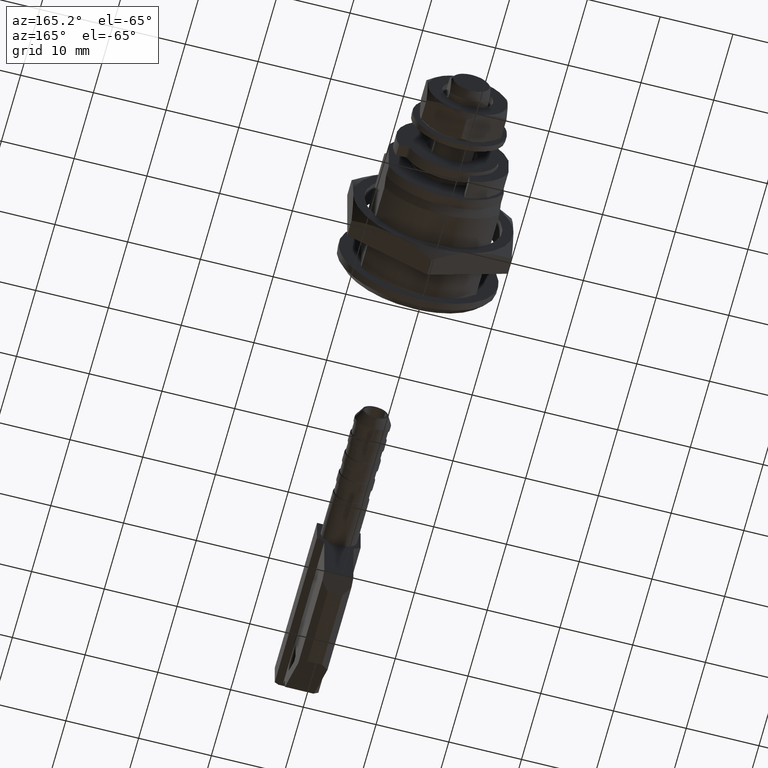
[diagram: clean part render]
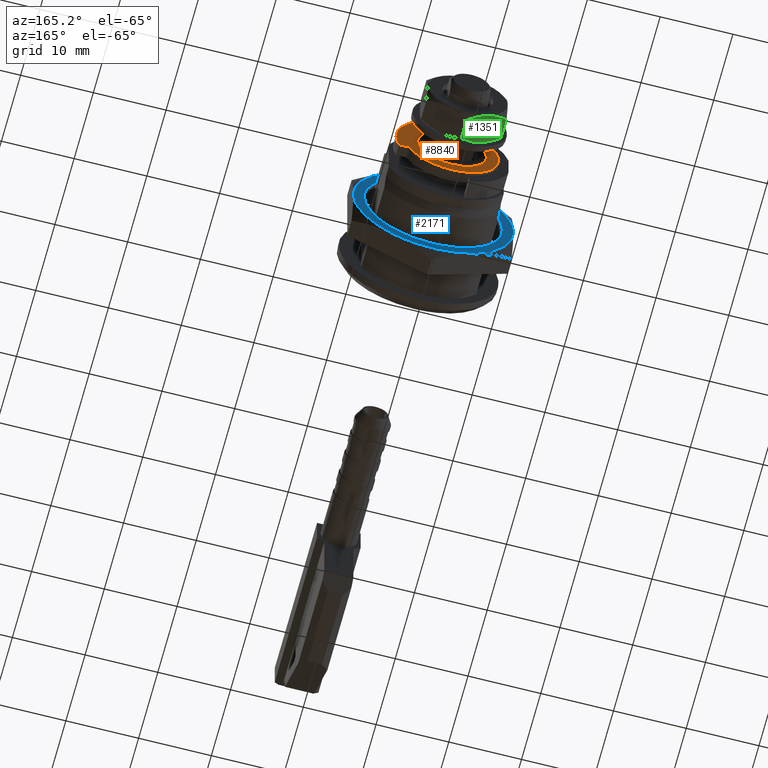
[diagram: same view with three faces highlighted in distinct colors, each labeled with its STEP entity id]
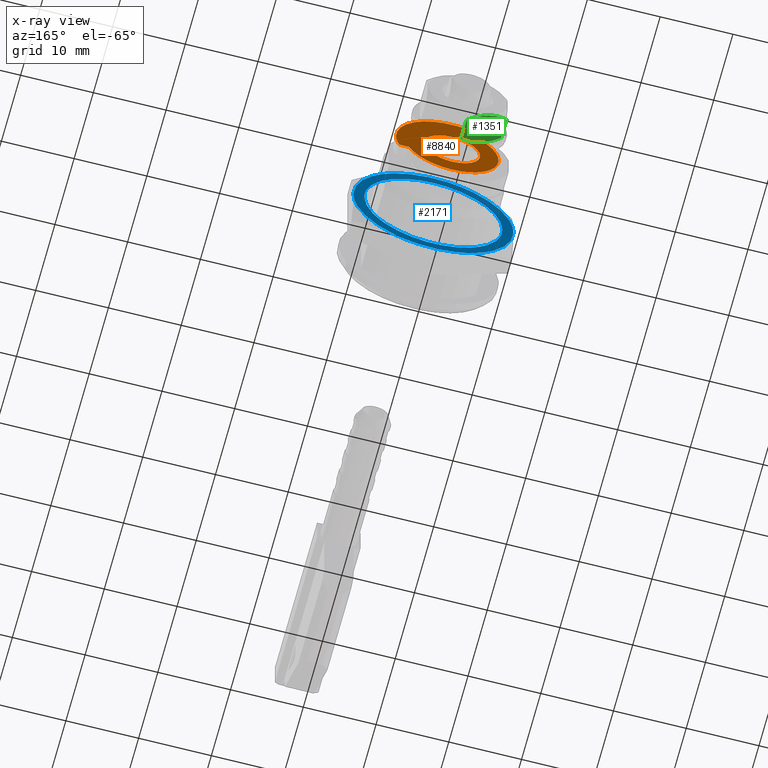
[diagram: x-ray of the same camera — body ghosted, the three highlighted faces saturated]
A machine part, auxiliary view with three faces highlighted in distinct colors.
The next image is the same camera in x-ray (body ghosted, the three faces saturated) — at least one of them is partly hidden behind the body in this view.
Their STEP definitions:

[orange] entity #8840 — the highlighted face is a freeform B-spline surface patch.
#8613=CARTESIAN_POINT('',(17.399800000000820,-2.381994626701895,3.024665534953635));
#8614=VERTEX_POINT('',#8613);
#8615=CARTESIAN_POINT('',(17.399799999999999,-3.850000000000000,0.0));
#8616=VERTEX_POINT('',#8615);
#8617=CARTESIAN_POINT('',(17.399800000000823,-2.381994626701895,3.024665534953634));
#8618=CARTESIAN_POINT('',(17.399800000000003,-3.850000000000000,1.868577077984548));
#8619=CARTESIAN_POINT('',(17.399799999999999,-3.850000000000000,0.0));
#8627=(BOUNDED_CURVE()B_SPLINE_CURVE(2,(#8617,#8618,#8619),.UNSPECIFIED.,.F.,.U.)B_SPLINE_CURVE_WITH_KNOTS((3,3),(0.357127336764911,0.500000000000000),.UNSPECIFIED.)CURVE()GEOMETRIC_REPRESENTATION_ITEM()RATIONAL_B_SPLINE_CURVE((0.856547294380760,0.832614263138497,1.0))REPRESENTATION_ITEM(''));
#8628=EDGE_CURVE('',#8614,#8616,#8627,.T.);
#8630=CARTESIAN_POINT('',(17.399799999999999,3.850000000000000,0.0));
#8631=VERTEX_POINT('',#8630);
#8632=CARTESIAN_POINT('',(17.399799999999999,-3.850000000000000,0.0));
#8633=CARTESIAN_POINT('',(17.399800000000003,-3.850000000000000,-3.850000000000000));
#8634=CARTESIAN_POINT('',(17.399799999999999,0.0,-3.850000000000000));
#8635=CARTESIAN_POINT('',(17.399800000000003,3.850000000000000,-3.850000000000000));
#8636=CARTESIAN_POINT('',(17.399799999999999,3.850000000000000,0.0));
#8644=(BOUNDED_CURVE()B_SPLINE_CURVE(2,(#8632,#8633,#8634,#8635,#8636),.UNSPECIFIED.,.F.,.U.)B_SPLINE_CURVE_WITH_KNOTS((3,2,3),(0.500000000000000,0.750000000000000,1.0),.UNSPECIFIED.)CURVE()GEOMETRIC_REPRESENTATION_ITEM()RATIONAL_B_SPLINE_CURVE((1.0,0.707106781186547,1.0,0.707106781186547,1.0))REPRESENTATION_ITEM(''));
#8645=EDGE_CURVE('',#8616,#8631,#8644,.T.);
#8647=CARTESIAN_POINT('',(17.399800000000059,2.883481488802925,2.551084965994289));
#8648=VERTEX_POINT('',#8647);
#8649=CARTESIAN_POINT('',(17.399799999999999,3.850000000000000,0.0));
#8650=CARTESIAN_POINT('',(17.399799999999995,3.850000000000000,1.458632823957724));
#8651=CARTESIAN_POINT('',(17.399800000000063,2.883481488802925,2.551084965994289));
#8659=(BOUNDED_CURVE()B_SPLINE_CURVE(2,(#8649,#8650,#8651),.UNSPECIFIED.,.F.,.U.)B_SPLINE_CURVE_WITH_KNOTS((3,3),(0.0,0.115779771800842),.UNSPECIFIED.)CURVE()GEOMETRIC_REPRESENTATION_ITEM()RATIONAL_B_SPLINE_CURVE((1.0,0.864355559855057,0.854350178318390))REPRESENTATION_ITEM(''));
#8660=EDGE_CURVE('',#8631,#8648,#8659,.T.);
#8729=CARTESIAN_POINT('',(17.399800000000063,2.883481488802925,2.551084965994289));
#8730=CARTESIAN_POINT('',(17.399799999999995,1.734300324221497,3.850000000000001));
#8731=CARTESIAN_POINT('',(17.399799999999999,0.0,3.850000000000000));
#8732=CARTESIAN_POINT('',(17.399799999999999,-1.333981888453984,3.849999999999999));
#8733=CARTESIAN_POINT('',(17.399800000000823,-2.381994626701895,3.024665534953634));
#8741=(BOUNDED_CURVE()B_SPLINE_CURVE(2,(#8729,#8730,#8731,#8732,#8733),.UNSPECIFIED.,.F.,.U.)B_SPLINE_CURVE_WITH_KNOTS((3,2,3),(0.115779771800842,0.250000000000000,0.357127336764911),.UNSPECIFIED.)CURVE()GEOMETRIC_REPRESENTATION_ITEM()RATIONAL_B_SPLINE_CURVE((0.854350178318390,0.842751221331490,1.0,0.874492518048051,0.856547294380760))REPRESENTATION_ITEM(''));
#8742=EDGE_CURVE('',#8648,#8614,#8741,.T.);
#8777=CARTESIAN_POINT('',(17.399799999999999,-8.399877154486203,8.399877679082884));
#8778=CARTESIAN_POINT('',(17.399799999999999,7.104045318107561,8.399877679082884));
#8779=CARTESIAN_POINT('',(17.399799999999999,-8.399877154486203,-7.104045321874122));
#8780=CARTESIAN_POINT('',(17.399799999999999,7.104045318107561,-7.104045321874122));
#8781=B_SPLINE_SURFACE_WITH_KNOTS('',1,1,((#8777,#8779),(#8778,#8780)),.UNSPECIFIED.,.F.,.F.,.U.,(2,2),(2,2),(0.0,15.503922472593761),(0.0,15.503923000957000),.UNSPECIFIED.);
#8782=CARTESIAN_POINT('',(17.399799999999999,2.500000000000085,5.891519328662140));
#8783=VERTEX_POINT('',#8782);
#8784=CARTESIAN_POINT('',(17.399799999999999,2.500000000000085,7.282856582413220));
#8785=VERTEX_POINT('',#8784);
#8786=CARTESIAN_POINT('',(17.399799999999999,2.500000000000085,5.891519328662140));
#8787=CARTESIAN_POINT('',(17.399799999999999,2.500000000000085,7.282856582413220));
#8788=QUASI_UNIFORM_CURVE('',1,(#8786,#8787),.UNSPECIFIED.,.F.,.U.);
#8789=EDGE_CURVE('',#8783,#8785,#8788,.T.);
#8790=ORIENTED_EDGE('',*,*,#8789,.T.);
#8791=CARTESIAN_POINT('',(17.399799999999999,-7.282856582413251,-2.500000000000000));
#8792=VERTEX_POINT('',#8791);
#8793=CARTESIAN_POINT('',(17.399799999999999,2.500000000000087,7.282856582413220));
#8794=CARTESIAN_POINT('',(17.399800000000003,-2.046054941030055,8.843389489242734));
#8795=CARTESIAN_POINT('',(17.399799999999999,-5.444722215136381,5.444722215136451));
#8796=CARTESIAN_POINT('',(17.399800000000003,-8.843389489242709,2.046054941030166));
#8797=CARTESIAN_POINT('',(17.399799999999999,-7.282856582413251,-2.499999999999999));
#8805=(BOUNDED_CURVE()B_SPLINE_CURVE(2,(#8793,#8794,#8795,#8796,#8797),.UNSPECIFIED.,.F.,.U.)B_SPLINE_CURVE_WITH_KNOTS((3,2,3),(0.0,0.500000000000000,1.0),.UNSPECIFIED.)CURVE()GEOMETRIC_REPRESENTATION_ITEM()RATIONAL_B_SPLINE_CURVE((1.0,0.848298155853904,1.0,0.848298155853904,1.0))REPRESENTATION_ITEM(''));
#8806=EDGE_CURVE('',#8785,#8792,#8805,.T.);
#8807=ORIENTED_EDGE('',*,*,#8806,.T.);
#8808=CARTESIAN_POINT('',(17.399799999999999,-5.891519328662181,-2.500000000000000));
#8809=VERTEX_POINT('',#8808);
#8810=CARTESIAN_POINT('',(17.399799999999999,-7.282856582413251,-2.500000000000000));
#8811=CARTESIAN_POINT('',(17.399799999999999,-5.891519328662181,-2.500000000000000));
#8812=QUASI_UNIFORM_CURVE('',1,(#8810,#8811),.UNSPECIFIED.,.F.,.U.);
#8813=EDGE_CURVE('',#8792,#8809,#8812,.T.);
#8814=ORIENTED_EDGE('',*,*,#8813,.T.);
#8815=CARTESIAN_POINT('',(17.399799999999999,-5.891519328662175,-2.500000000000001));
#8816=CARTESIAN_POINT('',(17.399800000000006,-3.984578200432062,-6.993912206235429));
#8817=CARTESIAN_POINT('',(17.399799999999999,0.853577889470204,-6.342823092803992));
#8818=CARTESIAN_POINT('',(17.399800000000006,5.691733979372467,-5.691733979372558));
#8819=CARTESIAN_POINT('',(17.399799999999999,6.342823092803978,-0.853577889470302));
#8820=CARTESIAN_POINT('',(17.399800000000006,6.993912206235489,3.984578200431958));
#8821=CARTESIAN_POINT('',(17.399799999999999,2.500000000000086,5.891519328662139));
#8829=(BOUNDED_CURVE()B_SPLINE_CURVE(2,(#8815,#8816,#8817,#8818,#8819,#8820,#8821),.UNSPECIFIED.,.F.,.U.)B_SPLINE_CURVE_WITH_KNOTS((3,2,2,3),(0.0,0.333333333333333,0.666666666666667,1.0),.UNSPECIFIED.)CURVE()GEOMETRIC_REPRESENTATION_ITEM()RATIONAL_B_SPLINE_CURVE((1.0,0.795097489797445,1.0,0.795097489797445,1.0,0.795097489797445,1.0))REPRESENTATION_ITEM(''));
#8830=EDGE_CURVE('',#8809,#8783,#8829,.T.);
#8831=ORIENTED_EDGE('',*,*,#8830,.T.);
#8832=EDGE_LOOP('',(#8790,#8807,#8814,#8831));
#8833=FACE_OUTER_BOUND('',#8832,.T.);
#8834=ORIENTED_EDGE('',*,*,#8645,.F.);
#8835=ORIENTED_EDGE('',*,*,#8628,.F.);
#8836=ORIENTED_EDGE('',*,*,#8742,.F.);
#8837=ORIENTED_EDGE('',*,*,#8660,.F.);
#8838=EDGE_LOOP('',(#8834,#8835,#8836,#8837));
#8839=FACE_BOUND('',#8838,.T.);
#8840=ADVANCED_FACE('',(#8833,#8839),#8781,.F.);

[blue] entity #2171 — the highlighted face is a freeform B-spline surface patch.
#1494=CARTESIAN_POINT('',(7.699999999999989,7.499398040138685,-5.831726076859733));
#1495=VERTEX_POINT('',#1494);
#1496=CARTESIAN_POINT('',(7.700000000000000,9.500000000000000,0.0));
#1497=VERTEX_POINT('',#1496);
#1498=CARTESIAN_POINT('',(7.699999999999989,7.499398040138685,-5.831726076859733));
#1499=CARTESIAN_POINT('',(7.700000000000001,9.500000000000000,-3.259021148828986));
#1500=CARTESIAN_POINT('',(7.700000000000000,9.500000000000000,0.0));
#1508=(BOUNDED_CURVE()B_SPLINE_CURVE(2,(#1498,#1499,#1500),.UNSPECIFIED.,.F.,.U.)B_SPLINE_CURVE_WITH_KNOTS((3,3),(0.893802273702833,1.0),.UNSPECIFIED.)CURVE()GEOMETRIC_REPRESENTATION_ITEM()RATIONAL_B_SPLINE_CURVE((0.856866837651582,0.875581624456611,1.0))REPRESENTATION_ITEM(''));
#1509=EDGE_CURVE('',#1495,#1497,#1508,.T.);
#1511=CARTESIAN_POINT('',(7.700000000000000,-9.500000000000000,0.0));
#1512=VERTEX_POINT('',#1511);
#1513=CARTESIAN_POINT('',(7.700000000000000,9.500000000000000,0.0));
#1514=CARTESIAN_POINT('',(7.700000000000000,9.500000000000000,9.500000000000000));
#1515=CARTESIAN_POINT('',(7.700000000000000,0.0,9.500000000000000));
#1516=CARTESIAN_POINT('',(7.700000000000000,-9.500000000000000,9.500000000000000));
#1517=CARTESIAN_POINT('',(7.700000000000000,-9.500000000000000,0.0));
#1525=(BOUNDED_CURVE()B_SPLINE_CURVE(2,(#1513,#1514,#1515,#1516,#1517),.UNSPECIFIED.,.F.,.U.)B_SPLINE_CURVE_WITH_KNOTS((3,2,3),(0.0,0.250000000000000,0.500000000000000),.UNSPECIFIED.)CURVE()GEOMETRIC_REPRESENTATION_ITEM()RATIONAL_B_SPLINE_CURVE((1.0,0.707106781186548,1.0,0.707106781186548,1.0))REPRESENTATION_ITEM(''));
#1526=EDGE_CURVE('',#1497,#1512,#1525,.T.);
#1528=CARTESIAN_POINT('',(7.699999999999999,-6.658637704017448,-6.775879568486813));
#1529=VERTEX_POINT('',#1528);
#1530=CARTESIAN_POINT('',(7.700000000000000,-9.500000000000000,0.0));
#1531=CARTESIAN_POINT('',(7.700000000000000,-9.500000000000000,-3.983681122536584));
#1532=CARTESIAN_POINT('',(7.699999999999999,-6.658637704017449,-6.775879568486814));
#1540=(BOUNDED_CURVE()B_SPLINE_CURVE(2,(#1530,#1531,#1532),.UNSPECIFIED.,.F.,.U.)B_SPLINE_CURVE_WITH_KNOTS((3,3),(0.500000000000000,0.626316771256660),.UNSPECIFIED.)CURVE()GEOMETRIC_REPRESENTATION_ITEM()RATIONAL_B_SPLINE_CURVE((1.0,0.852010697106057,0.853569641588808))REPRESENTATION_ITEM(''));
#1541=EDGE_CURVE('',#1512,#1529,#1540,.T.);
#1610=CARTESIAN_POINT('',(7.700000000000000,-6.658637704017448,-6.775879568486813));
#1611=CARTESIAN_POINT('',(7.700000000000000,-3.886552111375062,-9.500000000000000));
#1612=CARTESIAN_POINT('',(7.700000000000000,0.0,-9.500000000000000));
#1613=CARTESIAN_POINT('',(7.700000000000001,4.646853265194733,-9.500000000000002));
#1614=CARTESIAN_POINT('',(7.699999999999989,7.499398040138685,-5.831726076859733));
#1622=(BOUNDED_CURVE()B_SPLINE_CURVE(2,(#1610,#1611,#1612,#1613,#1614),.UNSPECIFIED.,.F.,.U.)B_SPLINE_CURVE_WITH_KNOTS((3,2,3),(0.626316771256660,0.750000000000000,0.893802273702833),.UNSPECIFIED.)CURVE()GEOMETRIC_REPRESENTATION_ITEM()RATIONAL_B_SPLINE_CURVE((0.853569641588808,0.855096084080491,1.0,0.831525156729936,0.856866837651582))REPRESENTATION_ITEM(''));
#1623=EDGE_CURVE('',#1529,#1495,#1622,.T.);
#1672=CARTESIAN_POINT('',(7.700000000000000,5.662272366651689,9.430730175646671));
#1673=VERTEX_POINT('',#1672);
#1674=CARTESIAN_POINT('',(7.700000000000000,10.998000000000120,0.209752234785174));
#1675=VERTEX_POINT('',#1674);
#1676=CARTESIAN_POINT('',(7.700000000000000,5.662272366651688,9.430730175646669));
#1677=CARTESIAN_POINT('',(7.700000000000000,10.881908216658573,6.296826513149837));
#1678=CARTESIAN_POINT('',(7.700000000000000,10.998000000000120,0.209752234785174));
#1686=(BOUNDED_CURVE()B_SPLINE_CURVE(2,(#1676,#1677,#1678),.UNSPECIFIED.,.F.,.U.)CURVE()GEOMETRIC_REPRESENTATION_ITEM()QUASI_UNIFORM_CURVE()RATIONAL_B_SPLINE_CURVE((1.0,0.874930429863407,1.0))REPRESENTATION_ITEM(''));
#1687=EDGE_CURVE('',#1673,#1675,#1686,.T.);
#1738=CARTESIAN_POINT('',(7.700000000000000,10.998000000000120,-0.209752234785174));
#1739=VERTEX_POINT('',#1738);
#1759=CARTESIAN_POINT('',(7.700000000000000,5.662272366651170,-9.430730175646980));
#1760=VERTEX_POINT('',#1759);
#1761=CARTESIAN_POINT('',(7.700000000000000,10.998000000000120,-0.209752234785175));
#1762=CARTESIAN_POINT('',(7.699999999999999,10.881908216658564,-6.296826513150235));
#1763=CARTESIAN_POINT('',(7.700000000000000,5.662272366651171,-9.430730175646982));
#1771=(BOUNDED_CURVE()B_SPLINE_CURVE(2,(#1761,#1762,#1763),.UNSPECIFIED.,.F.,.U.)CURVE()GEOMETRIC_REPRESENTATION_ITEM()QUASI_UNIFORM_CURVE()RATIONAL_B_SPLINE_CURVE((1.0,0.874930429863394,1.0))REPRESENTATION_ITEM(''));
#1772=EDGE_CURVE('',#1739,#1760,#1771,.T.);
#1808=CARTESIAN_POINT('',(7.700000000000000,5.336511575441900,-9.618817193666521));
#1809=VERTEX_POINT('',#1808);
#1827=CARTESIAN_POINT('',(7.700000000000000,-5.349453371241210,-9.611625701665458));
#1828=VERTEX_POINT('',#1827);
#1829=CARTESIAN_POINT('',(7.700000000000000,5.336511575441897,-9.618817193666519));
#1830=CARTESIAN_POINT('',(7.700000000000000,-0.008468980623384,-12.584207847595936));
#1831=CARTESIAN_POINT('',(7.700000000000000,-5.349453371241208,-9.611625701665460));
#1839=(BOUNDED_CURVE()B_SPLINE_CURVE(2,(#1829,#1830,#1831),.UNSPECIFIED.,.F.,.U.)CURVE()GEOMETRIC_REPRESENTATION_ITEM()QUASI_UNIFORM_CURVE()RATIONAL_B_SPLINE_CURVE((1.0,0.874111238643065,1.0))REPRESENTATION_ITEM(''));
#1840=EDGE_CURVE('',#1809,#1828,#1839,.T.);
#1876=CARTESIAN_POINT('',(7.700000000000000,-5.648830570852710,-9.438787696616549));
#1877=VERTEX_POINT('',#1876);
#1895=CARTESIAN_POINT('',(7.700000000000000,-10.999000000000001,-0.148320598704606));
#1896=VERTEX_POINT('',#1895);
#1897=CARTESIAN_POINT('',(7.700000000000000,-5.648830570852704,-9.438787696616547));
#1898=CARTESIAN_POINT('',(7.700000000000001,-10.916228395835528,-6.286408512023600));
#1899=CARTESIAN_POINT('',(7.700000000000000,-10.999000000000001,-0.148320598704608));
#1907=(BOUNDED_CURVE()B_SPLINE_CURVE(2,(#1897,#1898,#1899),.UNSPECIFIED.,.F.,.U.)CURVE()GEOMETRIC_REPRESENTATION_ITEM()QUASI_UNIFORM_CURVE()RATIONAL_B_SPLINE_CURVE((1.0,0.873227730776795,1.0))REPRESENTATION_ITEM(''));
#1908=EDGE_CURVE('',#1877,#1896,#1907,.T.);
#1942=CARTESIAN_POINT('',(7.700000000000000,-10.999000000000001,0.148320598704606));
#1943=VERTEX_POINT('',#1942);
#1963=CARTESIAN_POINT('',(7.700000000000000,-5.651112320686970,9.437421763330271));
#1964=VERTEX_POINT('',#1963);
#1965=CARTESIAN_POINT('',(7.700000000000000,-10.999000000000001,0.148320598704604));
#1966=CARTESIAN_POINT('',(7.700000000000000,-10.916251906796257,6.284665011395163));
#1967=CARTESIAN_POINT('',(7.700000000000000,-5.651112320686971,9.437421763330274));
#1975=(BOUNDED_CURVE()B_SPLINE_CURVE(2,(#1965,#1966,#1967),.UNSPECIFIED.,.F.,.U.)CURVE()GEOMETRIC_REPRESENTATION_ITEM()QUASI_UNIFORM_CURVE()RATIONAL_B_SPLINE_CURVE((1.0,0.873286630549614,1.0))REPRESENTATION_ITEM(''));
#1976=EDGE_CURVE('',#1943,#1964,#1975,.T.);
#2012=CARTESIAN_POINT('',(7.700000000000000,-5.346998413765330,9.612991624005041));
#2013=VERTEX_POINT('',#2012);
#2031=CARTESIAN_POINT('',(7.700000000000000,5.336511575441360,9.618817193666811));
#2032=VERTEX_POINT('',#2031);
#2033=CARTESIAN_POINT('',(7.700000000000000,-5.346998413765334,9.612991624005037));
#2034=CARTESIAN_POINT('',(7.700000000000000,-0.006861507514062,12.583316022885457));
#2035=CARTESIAN_POINT('',(7.700000000000000,5.336511575441363,9.618817193666814));
#2043=(BOUNDED_CURVE()B_SPLINE_CURVE(2,(#2033,#2034,#2035),.UNSPECIFIED.,.F.,.U.)CURVE()GEOMETRIC_REPRESENTATION_ITEM()QUASI_UNIFORM_CURVE()RATIONAL_B_SPLINE_CURVE((1.0,0.874173258037968,1.0))REPRESENTATION_ITEM(''));
#2044=EDGE_CURVE('',#2013,#2032,#2043,.T.);
#2122=CARTESIAN_POINT('',(7.700000000000000,-12.097749694381360,12.098897831098920));
#2123=CARTESIAN_POINT('',(7.700000000000000,12.096750677724010,12.098897831098920));
#2124=CARTESIAN_POINT('',(7.700000000000000,-12.097749694381360,-12.098896187954880));
#2125=CARTESIAN_POINT('',(7.700000000000000,12.096750677724010,-12.098896187954880));
#2126=B_SPLINE_SURFACE_WITH_KNOTS('',1,1,((#2122,#2124),(#2123,#2125)),.UNSPECIFIED.,.F.,.F.,.U.,(2,2),(2,2),(0.0,24.194500372105360),(0.0,24.197794019053791),.UNSPECIFIED.);
#2127=ORIENTED_EDGE('',*,*,#1687,.F.);
#2128=CARTESIAN_POINT('',(7.700000000000000,5.662272366651689,9.430730175646671));
#2129=CARTESIAN_POINT('',(7.700000000000000,5.336511575441360,9.618817193666811));
#2130=QUASI_UNIFORM_CURVE('',1,(#2128,#2129),.UNSPECIFIED.,.F.,.U.);
#2131=EDGE_CURVE('',#1673,#2032,#2130,.T.);
#2132=ORIENTED_EDGE('',*,*,#2131,.T.);
#2133=ORIENTED_EDGE('',*,*,#2044,.F.);
#2134=CARTESIAN_POINT('',(7.700000000000000,-5.346998413765330,9.612991624005041));
#2135=CARTESIAN_POINT('',(7.700000000000000,-5.651112320686970,9.437421763330271));
#2136=QUASI_UNIFORM_CURVE('',1,(#2134,#2135),.UNSPECIFIED.,.F.,.U.);
#2137=EDGE_CURVE('',#2013,#1964,#2136,.T.);
#2138=ORIENTED_EDGE('',*,*,#2137,.T.);
#2139=ORIENTED_EDGE('',*,*,#1976,.F.);
#2140=CARTESIAN_POINT('',(7.700000000000000,-10.999000000000001,0.148320598704606));
#2141=CARTESIAN_POINT('',(7.700000000000000,-10.999000000000001,-0.148320598704606));
#2142=QUASI_UNIFORM_CURVE('',1,(#2140,#2141),.UNSPECIFIED.,.F.,.U.);
#2143=EDGE_CURVE('',#1943,#1896,#2142,.T.);
#2144=ORIENTED_EDGE('',*,*,#2143,.T.);
#2145=ORIENTED_EDGE('',*,*,#1908,.F.);
#2146=CARTESIAN_POINT('',(7.700000000000000,-5.648830570852710,-9.438787696616549));
#2147=CARTESIAN_POINT('',(7.700000000000000,-5.349453371241210,-9.611625701665458));
#2148=QUASI_UNIFORM_CURVE('',1,(#2146,#2147),.UNSPECIFIED.,.F.,.U.);
#2149=EDGE_CURVE('',#1877,#1828,#2148,.T.);
#2150=ORIENTED_EDGE('',*,*,#2149,.T.);
#2151=ORIENTED_EDGE('',*,*,#1840,.F.);
#2152=CARTESIAN_POINT('',(7.700000000000000,5.336511575441900,-9.618817193666521));
#2153=CARTESIAN_POINT('',(7.700000000000000,5.662272366651170,-9.430730175646980));
#2154=QUASI_UNIFORM_CURVE('',1,(#2152,#2153),.UNSPECIFIED.,.F.,.U.);
#2155=EDGE_CURVE('',#1809,#1760,#2154,.T.);
#2156=ORIENTED_EDGE('',*,*,#2155,.T.);
#2157=ORIENTED_EDGE('',*,*,#1772,.F.);
#2158=CARTESIAN_POINT('',(7.700000000000000,10.998000000000120,-0.209752234785174));
#2159=CARTESIAN_POINT('',(7.700000000000000,10.998000000000120,0.209752234785174));
#2160=QUASI_UNIFORM_CURVE('',1,(#2158,#2159),.UNSPECIFIED.,.F.,.U.);
#2161=EDGE_CURVE('',#1739,#1675,#2160,.T.);
#2162=ORIENTED_EDGE('',*,*,#2161,.T.);
#2163=EDGE_LOOP('',(#2127,#2132,#2133,#2138,#2139,#2144,#2145,#2150,#2151,#2156,#2157,#2162));
#2164=FACE_OUTER_BOUND('',#2163,.T.);
#2165=ORIENTED_EDGE('',*,*,#1526,.F.);
#2166=ORIENTED_EDGE('',*,*,#1509,.F.);
#2167=ORIENTED_EDGE('',*,*,#1623,.F.);
#2168=ORIENTED_EDGE('',*,*,#1541,.F.);
#2169=EDGE_LOOP('',(#2165,#2166,#2167,#2168));
#2170=FACE_BOUND('',#2169,.T.);
#2171=ADVANCED_FACE('',(#2164,#2170),#2126,.F.);

[green] entity #1351 — the highlighted face is a freeform B-spline surface patch.
#794=CARTESIAN_POINT('',(24.902942804314250,0.000086606298270,-6.350049993879341));
#795=VERTEX_POINT('',#794);
#821=CARTESIAN_POINT('',(25.556191947281381,2.897411150622189,-4.677148242121425));
#822=VERTEX_POINT('',#821);
#823=CARTESIAN_POINT('',(24.902942804314250,0.000086606298270,-6.350049993879341));
#824=CARTESIAN_POINT('',(25.099474024854452,0.442032154488183,-6.094872692803243));
#825=CARTESIAN_POINT('',(25.263658567040189,0.890340810353992,-5.836021359961711));
#826=CARTESIAN_POINT('',(25.436139798430620,1.577320562409841,-5.439362439408008));
#827=CARTESIAN_POINT('',(25.481259199324398,1.808748043758551,-5.305737284616844));
#828=CARTESIAN_POINT('',(25.527139552223019,2.160177427367065,-5.102823585861133));
#829=CARTESIAN_POINT('',(25.538802821146270,2.278034669958625,-5.034773359421373));
#830=CARTESIAN_POINT('',(25.550504277285480,2.455960197345098,-4.932039982822713));
#831=CARTESIAN_POINT('',(25.553437628191389,2.515505759728717,-4.897658650418883));
#832=CARTESIAN_POINT('',(25.557311197136311,2.634137860056660,-4.829161024030339));
#833=CARTESIAN_POINT('',(25.558259855582971,2.693324596958382,-4.794986875631202));
#834=CARTESIAN_POINT('',(25.558207724059280,2.800811892080796,-4.732924207947971));
#835=CARTESIAN_POINT('',(25.557524372860438,2.849153992616976,-4.705011702350160));
#836=CARTESIAN_POINT('',(25.556191947281381,2.897411150622189,-4.677148242121425));
#837=B_SPLINE_CURVE_WITH_KNOTS('',3,(#823,#824,#825,#826,#827,#828,#829,#830,#831,#832,#833,#834,#835,#836),.UNSPECIFIED.,.F.,.U.,(4,2,2,2,2,2,4),(0.0,0.249999999999999,0.374999999999998,0.437499999999998,0.468749999999998,0.499999999999998,0.525625109039264),.UNSPECIFIED.);
#838=EDGE_CURVE('',#795,#822,#837,.T.);
#884=CARTESIAN_POINT('',(24.903155606536149,5.499000000000001,-3.175000000000000));
#885=VERTEX_POINT('',#884);
#886=CARTESIAN_POINT('',(25.556191947281381,2.897411150622189,-4.677148242121425));
#887=CARTESIAN_POINT('',(25.551024537730701,3.084553670104549,-4.569092814679153));
#888=CARTESIAN_POINT('',(25.536095634115320,3.270418730791668,-4.461774986379997));
#889=CARTESIAN_POINT('',(25.481768819720639,3.687378175946035,-4.221024076082670));
#890=CARTESIAN_POINT('',(25.437081756721760,3.917780384197479,-4.087990653616029));
#891=CARTESIAN_POINT('',(25.322567458299641,4.375294778275058,-3.823823453298125));
#892=CARTESIAN_POINT('',(25.252764961303932,4.602410201548410,-3.692687806158944));
#893=CARTESIAN_POINT('',(25.132310971283090,4.941022147027272,-3.497174457248145));
#894=CARTESIAN_POINT('',(25.089492952585619,5.053643616378102,-3.432147215814897));
#895=CARTESIAN_POINT('',(24.999507623812139,5.277307502369763,-3.303004471921176));
#896=CARTESIAN_POINT('',(24.952307659755949,5.388455974692134,-3.238827733282945));
#897=CARTESIAN_POINT('',(24.903155606536149,5.499000000000001,-3.175000000000000));
#898=B_SPLINE_CURVE_WITH_KNOTS('',3,(#886,#887,#888,#889,#890,#891,#892,#893,#894,#895,#896,#897),.UNSPECIFIED.,.F.,.U.,(4,2,2,2,2,4),(0.525625109039264,0.624999999999998,0.749999999999999,0.874999999999999,0.937500000000000,1.0),.UNSPECIFIED.);
#899=EDGE_CURVE('',#822,#885,#898,.T.);
#1205=CARTESIAN_POINT('',(22.096444393463852,5.499000000000001,-3.175000000000000));
#1206=VERTEX_POINT('',#1205);
#1234=CARTESIAN_POINT('',(22.096657195685751,0.000086606298272,-6.350049993879341));
#1235=VERTEX_POINT('',#1234);
#1236=CARTESIAN_POINT('',(22.096657195685761,0.000086606298273,-6.350049993879339));
#1237=CARTESIAN_POINT('',(21.900126247527410,0.442032044000805,-6.094872514474117));
#1238=CARTESIAN_POINT('',(21.735941978235690,0.890340589171474,-5.836021002968133));
#1239=CARTESIAN_POINT('',(21.563461157354791,1.577320174710629,-5.439361813652732));
#1240=CARTESIAN_POINT('',(21.518341893493460,1.808747600474297,-5.305736569146053));
#1241=CARTESIAN_POINT('',(21.472461746488669,2.160176900565235,-5.102822735591089));
#1242=CARTESIAN_POINT('',(21.460798546254189,2.278034115294286,-5.034772464180613));
#1243=CARTESIAN_POINT('',(21.449097193239851,2.455959600849784,-4.932039020065815));
#1244=CARTESIAN_POINT('',(21.446163876751040,2.515505149272650,-4.897657665129019));
#1245=CARTESIAN_POINT('',(21.442290376184008,2.634137221864185,-4.829159993973284));
#1246=CARTESIAN_POINT('',(21.441341751756390,2.693323944966621,-4.794985823301789));
#1247=CARTESIAN_POINT('',(21.441485139208510,2.988618077000489,-4.624484205076524));
#1248=CARTESIAN_POINT('',(21.457301397902160,3.222798566032473,-4.489269353153365));
#1249=CARTESIAN_POINT('',(21.517832395634461,3.687377682956487,-4.221023280386414));
#1250=CARTESIAN_POINT('',(21.562519307507340,3.917779952509796,-4.087989956862371));
#1251=CARTESIAN_POINT('',(21.677033302764510,4.375294469561432,-3.823822955027373));
#1252=CARTESIAN_POINT('',(21.746835647722179,4.602409954506612,-3.692687407427910));
#1253=CARTESIAN_POINT('',(21.867289409113990,4.941021992725218,-3.497174208201159));
#1254=CARTESIAN_POINT('',(21.910107351441798,5.053643493054204,-3.432147016767341));
#1255=CARTESIAN_POINT('',(22.000092527957030,5.277307440807007,-3.303004372557497));
#1256=CARTESIAN_POINT('',(22.047292416053669,5.388455943941166,-3.238827683650192));
#1257=CARTESIAN_POINT('',(22.096444393463852,5.499000000000000,-3.174999999999999));
#1258=B_SPLINE_CURVE_WITH_KNOTS('',3,(#1236,#1237,#1238,#1239,#1240,#1241,#1242,#1243,#1244,#1245,#1246,#1247,#1248,#1249,#1250,#1251,#1252,#1253,#1254,#1255,#1256,#1257),.UNSPECIFIED.,.F.,.U.,(4,2,2,2,2,2,2,2,2,2,4),(0.0,0.250000000000000,0.374999999999999,0.437499999999999,0.468749999999999,0.499999999999999,0.625000000000000,0.750000000000000,0.875000000000000,0.937500000000000,1.0),.UNSPECIFIED.);
#1259=EDGE_CURVE('',#1235,#1206,#1258,.T.);
#1331=CARTESIAN_POINT('',(21.235743831025299,-0.274584107059170,-6.508643734919752));
#1332=CARTESIAN_POINT('',(21.235743831025299,5.773670860849790,-3.016406173798111));
#1333=CARTESIAN_POINT('',(25.763636206756029,-0.274584107059170,-6.508643734919752));
#1334=CARTESIAN_POINT('',(25.763636206756029,5.773670860849790,-3.016406173798111));
#1335=B_SPLINE_SURFACE_WITH_KNOTS('',1,1,((#1331,#1333),(#1332,#1334)),.UNSPECIFIED.,.F.,.F.,.U.,(2,2),(2,2),(0.0,6.984061235423430),(0.0,4.527892375730737),.UNSPECIFIED.);
#1336=ORIENTED_EDGE('',*,*,#899,.F.);
#1337=ORIENTED_EDGE('',*,*,#838,.F.);
#1338=CARTESIAN_POINT('',(22.096657195685751,0.000086606298272,-6.350049993879341));
#1339=CARTESIAN_POINT('',(24.902942804314250,0.000086606298270,-6.350049993879341));
#1340=QUASI_UNIFORM_CURVE('',1,(#1338,#1339),.UNSPECIFIED.,.F.,.U.);
#1341=EDGE_CURVE('',#1235,#795,#1340,.T.);
#1342=ORIENTED_EDGE('',*,*,#1341,.F.);
#1343=ORIENTED_EDGE('',*,*,#1259,.T.);
#1344=CARTESIAN_POINT('',(22.096444393463852,5.499000000000001,-3.175000000000000));
#1345=CARTESIAN_POINT('',(24.903155606536149,5.499000000000001,-3.175000000000000));
#1346=QUASI_UNIFORM_CURVE('',1,(#1344,#1345),.UNSPECIFIED.,.F.,.U.);
#1347=EDGE_CURVE('',#1206,#885,#1346,.T.);
#1348=ORIENTED_EDGE('',*,*,#1347,.T.);
#1349=EDGE_LOOP('',(#1336,#1337,#1342,#1343,#1348));
#1350=FACE_OUTER_BOUND('',#1349,.T.);
#1351=ADVANCED_FACE('',(#1350),#1335,.T.);